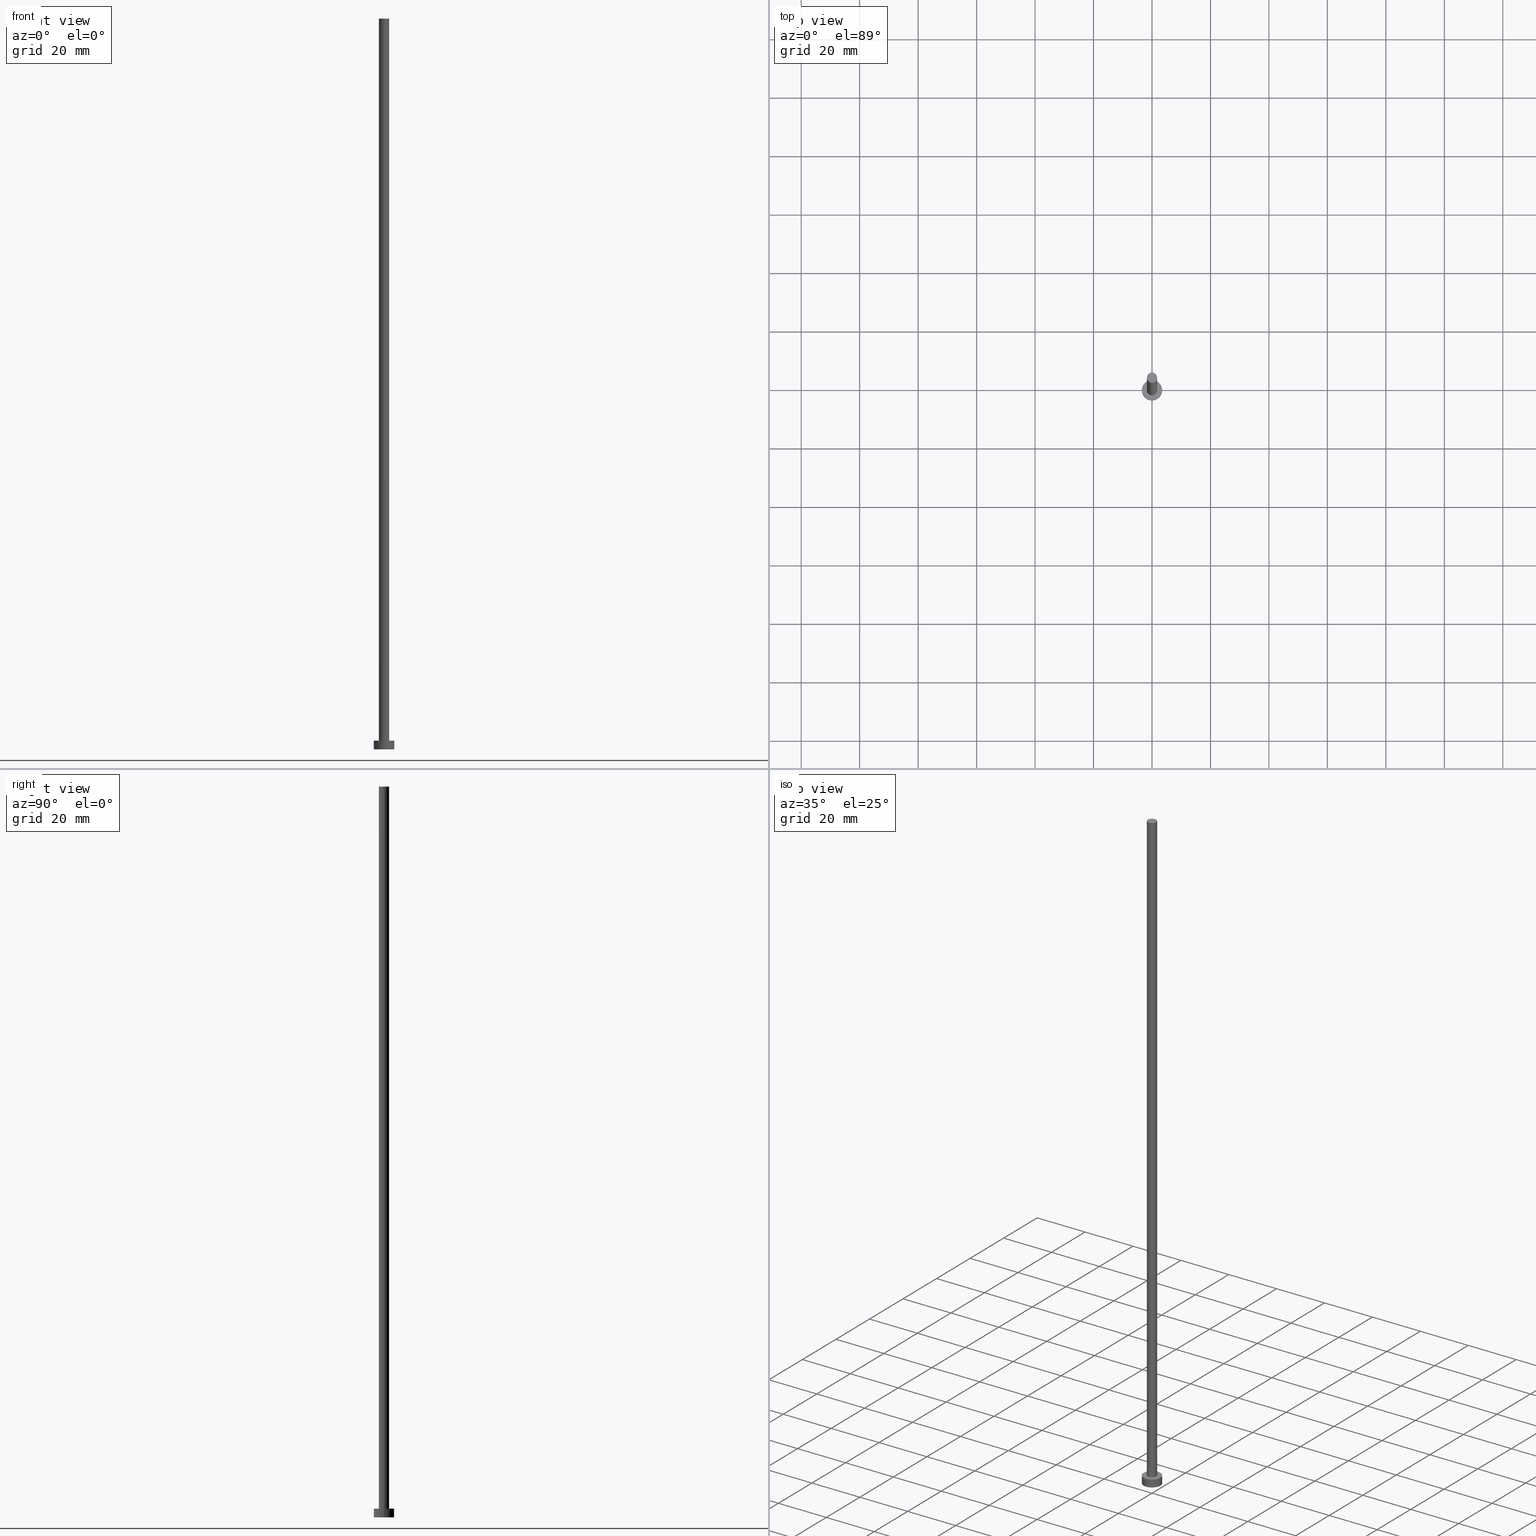
[diagram: canonical four-view strip — front | top / right | iso, engineering-drawing reading convention]
A machine part, canonical four-view strip (front | top / right | iso — engineering-drawing reading convention). The complete STEP part file that produces these views, byte-faithful:
ISO-10303-21;
HEADER;
FILE_DESCRIPTION (( 'STEP AP203' ),
    '1' );
FILE_NAME ('31c7.STEP',
    '2023-02-12T12:03:52',
    ( '' ),
    ( '' ),
    'SwSTEP 2.0',
    'SolidWorks 2019',
    '' );
FILE_SCHEMA (( 'CONFIG_CONTROL_DESIGN' ));
ENDSEC;

DATA;
#1 = DESIGN_CONTEXT ( 'detailed design', #223, 'design' ) ;
#2 = ORIENTED_EDGE ( 'NONE', *, *, #127, .T. ) ;
#3 = APPROVAL_STATUS ( 'not_yet_approved' ) ;
#4 = EDGE_LOOP ( 'NONE', ( #5, #32, #86, #65 ) ) ;
#5 = ORIENTED_EDGE ( 'NONE', *, *, #219, .F. ) ;
#6 = ORIENTED_EDGE ( 'NONE', *, *, #121, .T. ) ;
#7 = DIRECTION ( 'NONE',  ( -0.000000000000000000, -0.000000000000000000, -1.000000000000000000 ) ) ;
#8 = ORIENTED_EDGE ( 'NONE', *, *, #34, .F. ) ;
#9 = AXIS2_PLACEMENT_3D ( 'NONE', #12, #167, #247 ) ;
#10 = APPROVAL ( #3, 'NEUR�EN�' ) ;
#11 = DIRECTION ( 'NONE',  ( 0.000000000000000000, 0.000000000000000000, 1.000000000000000000 ) ) ;
#12 = CARTESIAN_POINT ( 'NONE',  ( 0.000000000000000000, 0.000000000000000000, 3.000000000000000000 ) ) ;
#13 = DIRECTION ( 'NONE',  ( 1.000000000000000000, 0.000000000000000000, 0.000000000000000000 ) ) ;
#14 = CIRCLE ( 'NONE', #179, 3.500000000000000000 ) ;
#15 = DIRECTION ( 'NONE',  ( -1.000000000000000000, 0.000000000000000000, 0.000000000000000000 ) ) ;
#16 = CYLINDRICAL_SURFACE ( 'NONE', #232, 3.500000000000000000 ) ;
#17 = EDGE_CURVE ( 'NONE', #128, #202, #154, .T. ) ;
#18 = VECTOR ( 'NONE', #68, 1000.000000000000000 ) ;
#19 = LOCAL_TIME ( 13, 3, 52.00000000000000000, #64 ) ;
#20 = PRODUCT_DEFINITION_SHAPE ( 'NONE', 'NONE',  #157 ) ;
#21 = DATE_TIME_ROLE ( 'creation_date' ) ;
#22 = APPROVAL_STATUS ( 'not_yet_approved' ) ;
#23 = ORIENTED_EDGE ( 'NONE', *, *, #75, .T. ) ;
#24 = APPROVAL_STATUS ( 'not_yet_approved' ) ;
#25 = APPROVAL ( #22, 'NEUR�EN�' ) ;
#26 = AXIS2_PLACEMENT_3D ( 'NONE', #116, #35, #92 ) ;
#27 = ORGANIZATION ( 'NEUR�EN�', 'NEUR�EN�', '' ) ;
#28 = ORIENTED_EDGE ( 'NONE', *, *, #17, .F. ) ;
#29 = CARTESIAN_POINT ( 'NONE',  ( 0.000000000000000000, 0.000000000000000000, 3.000000000000000000 ) ) ;
#30 = ORIENTED_EDGE ( 'NONE', *, *, #244, .F. ) ;
#31 = AXIS2_PLACEMENT_3D ( 'NONE', #172, #119, #94 ) ;
#32 = ORIENTED_EDGE ( 'NONE', *, *, #127, .F. ) ;
#33 = VERTEX_POINT ( 'NONE', #185 ) ;
#34 = EDGE_CURVE ( 'NONE', #164, #202, #137, .T. ) ;
#35 = DIRECTION ( 'NONE',  ( 0.000000000000000000, 0.000000000000000000, 1.000000000000000000 ) ) ;
#36 = DIRECTION ( 'NONE',  ( -0.000000000000000000, -0.000000000000000000, -1.000000000000000000 ) ) ;
#37 = EDGE_CURVE ( 'NONE', #133, #110, #192, .T. ) ;
#38 = CARTESIAN_POINT ( 'NONE',  ( 0.000000000000000000, 0.000000000000000000, 250.0000000000000000 ) ) ;
#39 = LINE ( 'NONE', #188, #205 ) ;
#40 = PLANE ( 'NONE',  #31 ) ;
#41 = COORDINATED_UNIVERSAL_TIME_OFFSET ( 1, 0, .AHEAD. ) ;
#42 = PERSON_AND_ORGANIZATION ( #230, #27 ) ;
#43 = APPROVAL_DATE_TIME ( #101, #25 ) ;
#44 = EDGE_LOOP ( 'NONE', ( #218, #181 ) ) ;
#45 = PERSON_AND_ORGANIZATION_ROLE ( 'design_supplier' ) ;
#46 = DIRECTION ( 'NONE',  ( 0.000000000000000000, 0.000000000000000000, 1.000000000000000000 ) ) ;
#47 = ADVANCED_FACE ( 'NONE', ( #48 ), #163, .T. ) ;
#48 = FACE_OUTER_BOUND ( 'NONE', #183, .T. ) ;
#49 = LINE ( 'NONE', #243, #18 ) ;
#50 = ORIENTED_EDGE ( 'NONE', *, *, #37, .T. ) ;
#51 = ORIENTED_EDGE ( 'NONE', *, *, #244, .T. ) ;
#52 = CARTESIAN_POINT ( 'NONE',  ( 0.000000000000000000, 0.000000000000000000, 3.000000000000000000 ) ) ;
#53 = DIRECTION ( 'NONE',  ( -1.000000000000000000, 0.000000000000000000, 0.000000000000000000 ) ) ;
#54 = CC_DESIGN_APPROVAL ( #108, ( #157 ) ) ;
#55 = DIRECTION ( 'NONE',  ( -0.000000000000000000, -0.000000000000000000, -1.000000000000000000 ) ) ;
#56 = DIRECTION ( 'NONE',  ( -1.000000000000000000, 0.000000000000000000, 0.000000000000000000 ) ) ;
#57 = AXIS2_PLACEMENT_3D ( 'NONE', #189, #71, #249 ) ;
#58 = APPROVAL_ROLE ( '' ) ;
#59 = CC_DESIGN_PERSON_AND_ORGANIZATION_ASSIGNMENT ( #211, #45, ( #225 ) ) ;
#60 = PRODUCT ( '31c7', '31c7', '', ( #78 ) ) ;
#61 = COORDINATED_UNIVERSAL_TIME_OFFSET ( 1, 0, .AHEAD. ) ;
#62 = AXIS2_PLACEMENT_3D ( 'NONE', #129, #46, #109 ) ;
#63 = PERSON_AND_ORGANIZATION ( #230, #27 ) ;
#64 = COORDINATED_UNIVERSAL_TIME_OFFSET ( 1, 0, .AHEAD. ) ;
#65 = ORIENTED_EDGE ( 'NONE', *, *, #239, .T. ) ;
#66 = CC_DESIGN_APPROVAL ( #25, ( #113 ) ) ;
#67 = DIRECTION ( 'NONE',  ( -0.000000000000000000, -0.000000000000000000, -1.000000000000000000 ) ) ;
#68 = DIRECTION ( 'NONE',  ( -0.000000000000000000, -0.000000000000000000, -1.000000000000000000 ) ) ;
#69 = VERTEX_POINT ( 'NONE', #220 ) ;
#70 = CARTESIAN_POINT ( 'NONE',  ( -3.500000000000000000, 0.000000000000000000, 3.000000000000000000 ) ) ;
#71 = DIRECTION ( 'NONE',  ( 0.000000000000000000, 0.000000000000000000, 1.000000000000000000 ) ) ;
#72 = CARTESIAN_POINT ( 'NONE',  ( 3.500000000000000000, 4.286263797015736595E-16, 0.000000000000000000 ) ) ;
#73 = CIRCLE ( 'NONE', #136, 3.500000000000000000 ) ;
#74 = CARTESIAN_POINT ( 'NONE',  ( -1.750000000000000000, 0.000000000000000000, 3.000000000000000000 ) ) ;
#75 = EDGE_CURVE ( 'NONE', #69, #128, #73, .T. ) ;
#76 = PERSON_AND_ORGANIZATION_ROLE ( 'classification_officer' ) ;
#77 = AXIS2_PLACEMENT_3D ( 'NONE', #131, #197, #88 ) ;
#78 = MECHANICAL_CONTEXT ( 'NONE', #228, 'mechanical' ) ;
#79 = CALENDAR_DATE ( 2023, 12, 2 ) ;
#80 = ADVANCED_BREP_SHAPE_REPRESENTATION ( '31c7', ( #89, #84 ), #132 ) ;
#81 = APPROVAL_PERSON_ORGANIZATION ( #63, #108, #82 ) ;
#82 = APPROVAL_ROLE ( '' ) ;
#83 = EDGE_LOOP ( 'NONE', ( #30, #102, #184, #198 ) ) ;
#84 = AXIS2_PLACEMENT_3D ( 'NONE', #195, #143, #212 ) ;
#85 = DIRECTION ( 'NONE',  ( 1.000000000000000000, 0.000000000000000000, -0.000000000000000000 ) ) ;
#86 = ORIENTED_EDGE ( 'NONE', *, *, #97, .T. ) ;
#87 = ADVANCED_FACE ( 'NONE', ( #166 ), #182, .T. ) ;
#88 = DIRECTION ( 'NONE',  ( 1.000000000000000000, 0.000000000000000000, 0.000000000000000000 ) ) ;
#89 = MANIFOLD_SOLID_BREP ( 'P�idat vysunut�m3', #250 ) ;
#90 = EDGE_LOOP ( 'NONE', ( #106, #8 ) ) ;
#91 = DIRECTION ( 'NONE',  ( 0.000000000000000000, 0.000000000000000000, 1.000000000000000000 ) ) ;
#92 = DIRECTION ( 'NONE',  ( 1.000000000000000000, 0.000000000000000000, -0.000000000000000000 ) ) ;
#93 = AXIS2_PLACEMENT_3D ( 'NONE', #38, #91, #13 ) ;
#94 = DIRECTION ( 'NONE',  ( 1.000000000000000000, 0.000000000000000000, -0.000000000000000000 ) ) ;
#95 = CC_DESIGN_APPROVAL ( #10, ( #225 ) ) ;
#96 = FACE_OUTER_BOUND ( 'NONE', #4, .T. ) ;
#97 = EDGE_CURVE ( 'NONE', #110, #149, #49, .T. ) ;
#98 = APPROVAL_ROLE ( '' ) ;
#99 = CALENDAR_DATE ( 2023, 12, 2 ) ;
#100 = ADVANCED_FACE ( 'NONE', ( #200, #226 ), #135, .T. ) ;
#101 = DATE_AND_TIME ( #158, #118 ) ;
#102 = ORIENTED_EDGE ( 'NONE', *, *, #121, .F. ) ;
#103 = DATE_AND_TIME ( #99, #196 ) ;
#104 = LOCAL_TIME ( 13, 3, 52.00000000000000000, #194 ) ;
#105 = CC_DESIGN_PERSON_AND_ORGANIZATION_ASSIGNMENT ( #176, #76, ( #113 ) ) ;
#106 = ORIENTED_EDGE ( 'NONE', *, *, #169, .F. ) ;
#107 = DIRECTION ( 'NONE',  ( 0.000000000000000000, 0.000000000000000000, 1.000000000000000000 ) ) ;
#108 = APPROVAL ( #24, 'NEUR�EN�' ) ;
#109 = DIRECTION ( 'NONE',  ( 1.000000000000000000, 0.000000000000000000, 0.000000000000000000 ) ) ;
#110 = VERTEX_POINT ( 'NONE', #138 ) ;
#111 = EDGE_LOOP ( 'NONE', ( #224, #152, #237, #203 ) ) ;
#112 = DIRECTION ( 'NONE',  ( 0.000000000000000000, 0.000000000000000000, 1.000000000000000000 ) ) ;
#113 = SECURITY_CLASSIFICATION ( '', '', #238 ) ;
#114 = DIRECTION ( 'NONE',  ( -0.000000000000000000, -0.000000000000000000, -1.000000000000000000 ) ) ;
#115 = CYLINDRICAL_SURFACE ( 'NONE', #145, 1.750000000000000000 ) ;
#116 = CARTESIAN_POINT ( 'NONE',  ( 0.000000000000000000, 0.000000000000000000, 3.000000000000000000 ) ) ;
#117 = CC_DESIGN_PERSON_AND_ORGANIZATION_ASSIGNMENT ( #235, #254, ( #225 ) ) ;
#118 = LOCAL_TIME ( 13, 3, 52.00000000000000000, #61 ) ;
#119 = DIRECTION ( 'NONE',  ( 0.000000000000000000, 0.000000000000000000, 1.000000000000000000 ) ) ;
#120 = CALENDAR_DATE ( 2023, 12, 2 ) ;
#121 = EDGE_CURVE ( 'NONE', #128, #69, #217, .T. ) ;
#122 = AXIS2_PLACEMENT_3D ( 'NONE', #241, #67, #150 ) ;
#123 = APPROVAL_DATE_TIME ( #146, #108 ) ;
#124 = PERSON_AND_ORGANIZATION ( #230, #27 ) ;
#125 = SHAPE_DEFINITION_REPRESENTATION ( #20, #80 ) ;
#126 = PERSON_AND_ORGANIZATION_ROLE ( 'design_owner' ) ;
#127 = EDGE_CURVE ( 'NONE', #110, #133, #199, .T. ) ;
#128 = VERTEX_POINT ( 'NONE', #229 ) ;
#129 = CARTESIAN_POINT ( 'NONE',  ( 0.000000000000000000, 0.000000000000000000, 0.000000000000000000 ) ) ;
#130 = ADVANCED_FACE ( 'NONE', ( #141 ), #16, .T. ) ;
#131 = CARTESIAN_POINT ( 'NONE',  ( 0.000000000000000000, 0.000000000000000000, 250.0000000000000000 ) ) ;
#132 =( GEOMETRIC_REPRESENTATION_CONTEXT ( 3 ) GLOBAL_UNCERTAINTY_ASSIGNED_CONTEXT ( ( #147 ) ) GLOBAL_UNIT_ASSIGNED_CONTEXT ( ( #156, #171, #140 ) ) REPRESENTATION_CONTEXT ( 'NONE', 'WORKASPACE' ) );
#133 = VERTEX_POINT ( 'NONE', #155 ) ;
#134 = ORIENTED_EDGE ( 'NONE', *, *, #75, .F. ) ;
#135 = PLANE ( 'NONE',  #26 ) ;
#136 = AXIS2_PLACEMENT_3D ( 'NONE', #29, #107, #165 ) ;
#137 = CIRCLE ( 'NONE', #62, 3.500000000000000000 ) ;
#138 = CARTESIAN_POINT ( 'NONE',  ( -1.750000000000000000, 0.000000000000000000, 250.0000000000000000 ) ) ;
#139 = VECTOR ( 'NONE', #248, 1000.000000000000000 ) ;
#140 =( NAMED_UNIT ( * ) SI_UNIT ( $, .STERADIAN. ) SOLID_ANGLE_UNIT ( ) );
#141 = FACE_OUTER_BOUND ( 'NONE', #83, .T. ) ;
#142 = DIRECTION ( 'NONE',  ( 1.000000000000000000, 0.000000000000000000, 0.000000000000000000 ) ) ;
#143 = DIRECTION ( 'NONE',  ( 0.000000000000000000, 0.000000000000000000, 1.000000000000000000 ) ) ;
#144 = VECTOR ( 'NONE', #7, 1000.000000000000000 ) ;
#145 = AXIS2_PLACEMENT_3D ( 'NONE', #227, #36, #15 ) ;
#146 = DATE_AND_TIME ( #215, #19 ) ;
#147 = UNCERTAINTY_MEASURE_WITH_UNIT (LENGTH_MEASURE( 1.000000000000000082E-05 ), #156, 'distance_accuracy_value', 'NONE');
#148 = DATE_TIME_ROLE ( 'classification_date' ) ;
#149 = VERTEX_POINT ( 'NONE', #74 ) ;
#150 = DIRECTION ( 'NONE',  ( -1.000000000000000000, 0.000000000000000000, 0.000000000000000000 ) ) ;
#151 = ORIENTED_EDGE ( 'NONE', *, *, #34, .T. ) ;
#152 = ORIENTED_EDGE ( 'NONE', *, *, #219, .T. ) ;
#153 = CIRCLE ( 'NONE', #170, 1.750000000000000000 ) ;
#154 = LINE ( 'NONE', #70, #144 ) ;
#155 = CARTESIAN_POINT ( 'NONE',  ( 1.750000000000000000, 2.143131898507868297E-16, 250.0000000000000000 ) ) ;
#156 =( LENGTH_UNIT ( ) NAMED_UNIT ( * ) SI_UNIT ( .MILLI., .METRE. ) );
#157 = PRODUCT_DEFINITION ( 'NEZN�M�', '', #225, #1 ) ;
#158 = CALENDAR_DATE ( 2023, 12, 2 ) ;
#159 = CC_DESIGN_SECURITY_CLASSIFICATION ( #113, ( #225 ) ) ;
#160 = APPLICATION_PROTOCOL_DEFINITION ( 'international standard', 'config_control_design', 1994, #228 ) ;
#161 = LOCAL_TIME ( 13, 3, 52.00000000000000000, #177 ) ;
#162 = CC_DESIGN_DATE_AND_TIME_ASSIGNMENT ( #234, #148, ( #113 ) ) ;
#163 = CYLINDRICAL_SURFACE ( 'NONE', #122, 3.500000000000000000 ) ;
#164 = VERTEX_POINT ( 'NONE', #72 ) ;
#165 = DIRECTION ( 'NONE',  ( 1.000000000000000000, 0.000000000000000000, 0.000000000000000000 ) ) ;
#166 = FACE_OUTER_BOUND ( 'NONE', #240, .T. ) ;
#167 = DIRECTION ( 'NONE',  ( 0.000000000000000000, 0.000000000000000000, 1.000000000000000000 ) ) ;
#168 = CARTESIAN_POINT ( 'NONE',  ( 3.500000000000000000, 4.286263797015736595E-16, 3.000000000000000000 ) ) ;
#169 = EDGE_CURVE ( 'NONE', #202, #164, #14, .T. ) ;
#170 = AXIS2_PLACEMENT_3D ( 'NONE', #52, #11, #253 ) ;
#171 =( NAMED_UNIT ( * ) PLANE_ANGLE_UNIT ( ) SI_UNIT ( $, .RADIAN. ) );
#172 = CARTESIAN_POINT ( 'NONE',  ( 0.000000000000000000, 0.000000000000000000, 0.000000000000000000 ) ) ;
#173 = APPROVAL_DATE_TIME ( #103, #10 ) ;
#174 = CC_DESIGN_PERSON_AND_ORGANIZATION_ASSIGNMENT ( #124, #126, ( #60 ) ) ;
#175 = PERSON_AND_ORGANIZATION ( #230, #27 ) ;
#176 = PERSON_AND_ORGANIZATION ( #230, #27 ) ;
#177 = COORDINATED_UNIVERSAL_TIME_OFFSET ( 1, 0, .AHEAD. ) ;
#178 = PERSON_AND_ORGANIZATION_ROLE ( 'creator' ) ;
#179 = AXIS2_PLACEMENT_3D ( 'NONE', #191, #112, #142 ) ;
#180 = PRODUCT_RELATED_PRODUCT_CATEGORY ( 'detail', '', ( #60 ) ) ;
#181 = ORIENTED_EDGE ( 'NONE', *, *, #231, .F. ) ;
#182 = PLANE ( 'NONE',  #209 ) ;
#183 = EDGE_LOOP ( 'NONE', ( #134, #51, #151, #28 ) ) ;
#184 = ORIENTED_EDGE ( 'NONE', *, *, #17, .T. ) ;
#185 = CARTESIAN_POINT ( 'NONE',  ( 1.750000000000000000, 2.143131898507868297E-16, 3.000000000000000000 ) ) ;
#186 = CYLINDRICAL_SURFACE ( 'NONE', #214, 1.750000000000000000 ) ;
#187 = ADVANCED_FACE ( 'NONE', ( #96 ), #115, .T. ) ;
#188 = CARTESIAN_POINT ( 'NONE',  ( 1.750000000000000000, 2.143131898507868297E-16, 250.0000000000000000 ) ) ;
#189 = CARTESIAN_POINT ( 'NONE',  ( 0.000000000000000000, 0.000000000000000000, 3.000000000000000000 ) ) ;
#190 = LINE ( 'NONE', #168, #139 ) ;
#191 = CARTESIAN_POINT ( 'NONE',  ( 0.000000000000000000, 0.000000000000000000, 0.000000000000000000 ) ) ;
#192 = CIRCLE ( 'NONE', #77, 1.750000000000000000 ) ;
#193 = APPLICATION_PROTOCOL_DEFINITION ( 'international standard', 'config_control_design', 1994, #223 ) ;
#194 = COORDINATED_UNIVERSAL_TIME_OFFSET ( 1, 0, .AHEAD. ) ;
#195 = CARTESIAN_POINT ( 'NONE',  ( 0.000000000000000000, 0.000000000000000000, 0.000000000000000000 ) ) ;
#196 = LOCAL_TIME ( 13, 3, 52.00000000000000000, #41 ) ;
#197 = DIRECTION ( 'NONE',  ( 0.000000000000000000, 0.000000000000000000, 1.000000000000000000 ) ) ;
#198 = ORIENTED_EDGE ( 'NONE', *, *, #169, .T. ) ;
#199 = CIRCLE ( 'NONE', #93, 1.750000000000000000 ) ;
#200 = FACE_BOUND ( 'NONE', #44, .T. ) ;
#201 = ADVANCED_FACE ( 'NONE', ( #208 ), #186, .T. ) ;
#202 = VERTEX_POINT ( 'NONE', #251 ) ;
#203 = ORIENTED_EDGE ( 'NONE', *, *, #97, .F. ) ;
#204 = FACE_OUTER_BOUND ( 'NONE', #90, .T. ) ;
#205 = VECTOR ( 'NONE', #114, 1000.000000000000000 ) ;
#206 = DIRECTION ( 'NONE',  ( -0.000000000000000000, -0.000000000000000000, -1.000000000000000000 ) ) ;
#207 = CARTESIAN_POINT ( 'NONE',  ( 0.000000000000000000, 0.000000000000000000, 3.000000000000000000 ) ) ;
#208 = FACE_OUTER_BOUND ( 'NONE', #111, .T. ) ;
#209 = AXIS2_PLACEMENT_3D ( 'NONE', #246, #245, #85 ) ;
#210 = CARTESIAN_POINT ( 'NONE',  ( 0.000000000000000000, 0.000000000000000000, 250.0000000000000000 ) ) ;
#211 = PERSON_AND_ORGANIZATION ( #230, #27 ) ;
#212 = DIRECTION ( 'NONE',  ( 1.000000000000000000, 0.000000000000000000, 0.000000000000000000 ) ) ;
#213 = ADVANCED_FACE ( 'NONE', ( #204 ), #40, .F. ) ;
#214 = AXIS2_PLACEMENT_3D ( 'NONE', #210, #206, #56 ) ;
#215 = CALENDAR_DATE ( 2023, 12, 2 ) ;
#216 = PERSON_AND_ORGANIZATION ( #230, #27 ) ;
#217 = CIRCLE ( 'NONE', #57, 3.500000000000000000 ) ;
#218 = ORIENTED_EDGE ( 'NONE', *, *, #239, .F. ) ;
#219 = EDGE_CURVE ( 'NONE', #133, #33, #39, .T. ) ;
#220 = CARTESIAN_POINT ( 'NONE',  ( 3.500000000000000000, 4.286263797015736595E-16, 3.000000000000000000 ) ) ;
#221 = EDGE_LOOP ( 'NONE', ( #6, #23 ) ) ;
#222 = CC_DESIGN_PERSON_AND_ORGANIZATION_ASSIGNMENT ( #175, #178, ( #157 ) ) ;
#223 = APPLICATION_CONTEXT ( 'configuration controlled 3d designs of mechanical parts and assemblies' ) ;
#224 = ORIENTED_EDGE ( 'NONE', *, *, #37, .F. ) ;
#225 = PRODUCT_DEFINITION_FORMATION_WITH_SPECIFIED_SOURCE ( 'LIBOVOLN�', '', #60, .NOT_KNOWN. ) ;
#226 = FACE_OUTER_BOUND ( 'NONE', #221, .T. ) ;
#227 = CARTESIAN_POINT ( 'NONE',  ( 0.000000000000000000, 0.000000000000000000, 250.0000000000000000 ) ) ;
#228 = APPLICATION_CONTEXT ( 'configuration controlled 3d designs of mechanical parts and assemblies' ) ;
#229 = CARTESIAN_POINT ( 'NONE',  ( -3.500000000000000000, 0.000000000000000000, 3.000000000000000000 ) ) ;
#230 = PERSON ( 'NEUR�EN�', 'NEUR�EN�', 'NEUR�EN�', ('NEUR�EN�'), ('NEUR�EN�'), ('NEUR�EN�') ) ;
#231 = EDGE_CURVE ( 'NONE', #33, #149, #242, .T. ) ;
#232 = AXIS2_PLACEMENT_3D ( 'NONE', #207, #55, #53 ) ;
#233 = APPROVAL_PERSON_ORGANIZATION ( #216, #25, #58 ) ;
#234 = DATE_AND_TIME ( #120, #104 ) ;
#235 = PERSON_AND_ORGANIZATION ( #230, #27 ) ;
#236 = DATE_AND_TIME ( #79, #161 ) ;
#237 = ORIENTED_EDGE ( 'NONE', *, *, #231, .T. ) ;
#238 = SECURITY_CLASSIFICATION_LEVEL ( 'unclassified' ) ;
#239 = EDGE_CURVE ( 'NONE', #149, #33, #153, .T. ) ;
#240 = EDGE_LOOP ( 'NONE', ( #2, #50 ) ) ;
#241 = CARTESIAN_POINT ( 'NONE',  ( 0.000000000000000000, 0.000000000000000000, 3.000000000000000000 ) ) ;
#242 = CIRCLE ( 'NONE', #9, 1.750000000000000000 ) ;
#243 = CARTESIAN_POINT ( 'NONE',  ( -1.750000000000000000, 0.000000000000000000, 250.0000000000000000 ) ) ;
#244 = EDGE_CURVE ( 'NONE', #69, #164, #190, .T. ) ;
#245 = DIRECTION ( 'NONE',  ( 0.000000000000000000, 0.000000000000000000, 1.000000000000000000 ) ) ;
#246 = CARTESIAN_POINT ( 'NONE',  ( 0.000000000000000000, 0.000000000000000000, 250.0000000000000000 ) ) ;
#247 = DIRECTION ( 'NONE',  ( 1.000000000000000000, 0.000000000000000000, 0.000000000000000000 ) ) ;
#248 = DIRECTION ( 'NONE',  ( -0.000000000000000000, -0.000000000000000000, -1.000000000000000000 ) ) ;
#249 = DIRECTION ( 'NONE',  ( 1.000000000000000000, 0.000000000000000000, 0.000000000000000000 ) ) ;
#250 = CLOSED_SHELL ( 'NONE', ( #201, #47, #130, #100, #213, #187, #87 ) ) ;
#251 = CARTESIAN_POINT ( 'NONE',  ( -3.500000000000000000, 0.000000000000000000, 0.000000000000000000 ) ) ;
#252 = CC_DESIGN_DATE_AND_TIME_ASSIGNMENT ( #236, #21, ( #157 ) ) ;
#253 = DIRECTION ( 'NONE',  ( 1.000000000000000000, 0.000000000000000000, 0.000000000000000000 ) ) ;
#254 = PERSON_AND_ORGANIZATION_ROLE ( 'creator' ) ;
#255 = APPROVAL_PERSON_ORGANIZATION ( #42, #10, #98 ) ;
ENDSEC;
END-ISO-10303-21;
